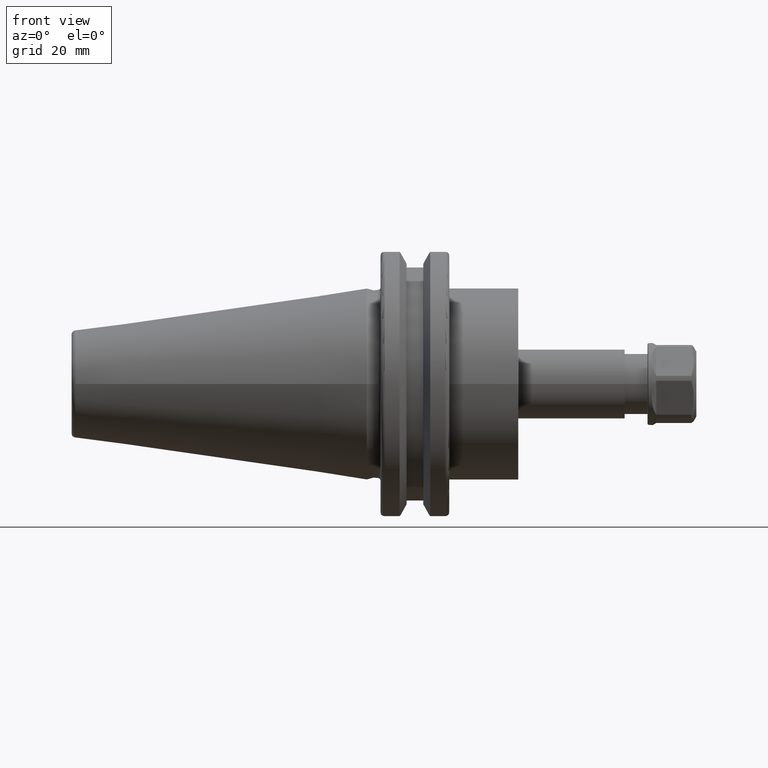
[diagram: clean part render]
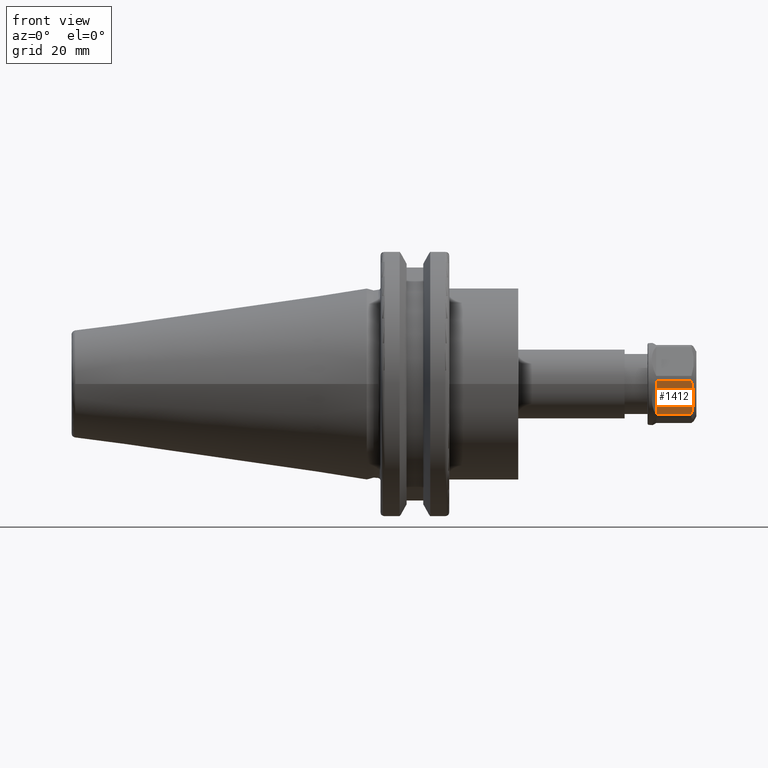
[diagram: same view with one face highlighted and labeled with its STEP entity id]
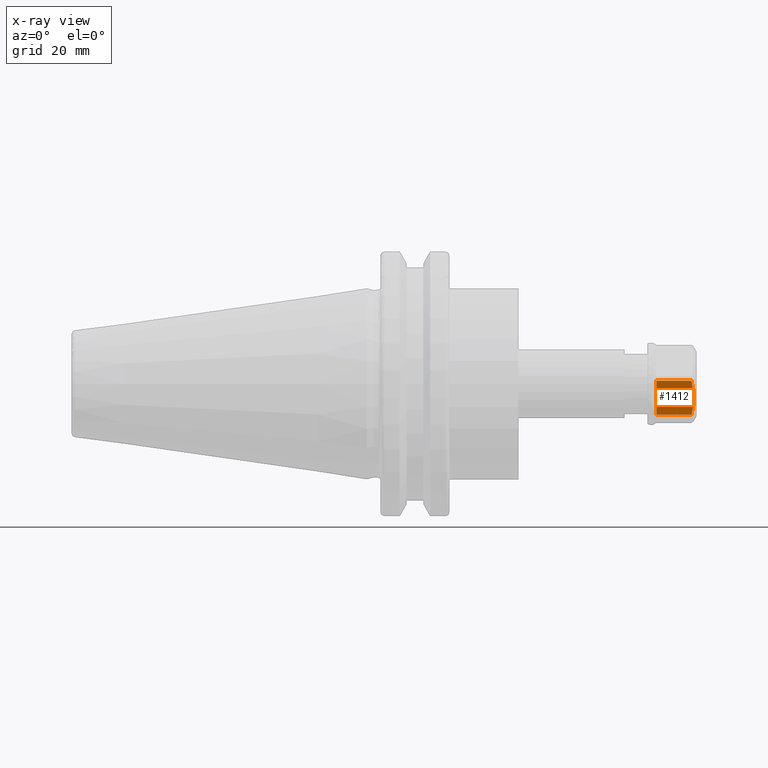
[diagram: x-ray of the same camera — body ghosted, the highlighted face saturated]
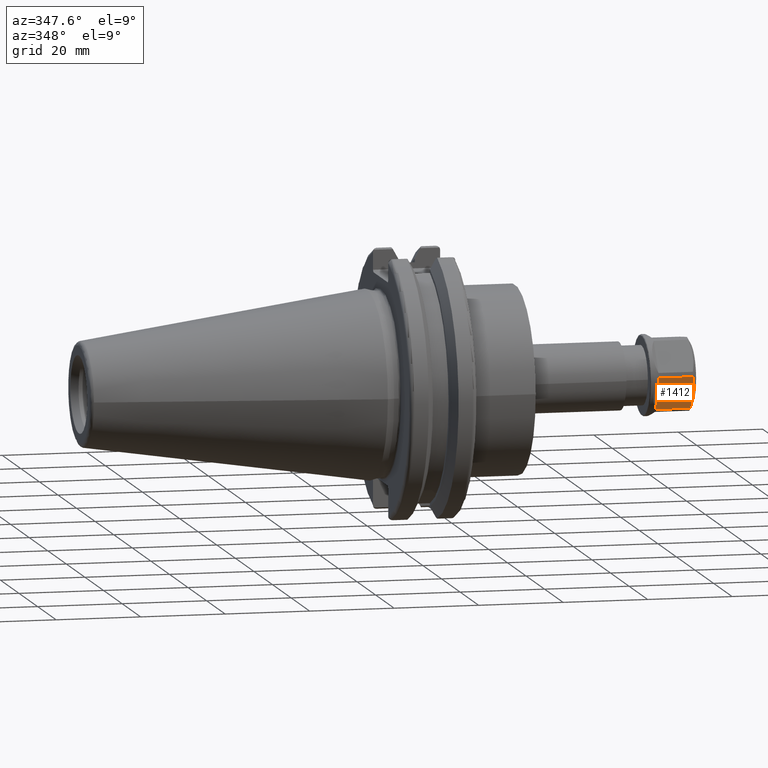
[diagram: same view with one face highlighted and labeled with its STEP entity id]
A machine part, front view. The second image highlights one B-rep face of the part: STEP entity #1412.
The next image is the same camera in x-ray: the body ghosted, the highlighted face saturated — about 0% of this face is hidden behind the body in this view.
A second angle (auxiliary view) of the same face is appended — the face is thin or edge-on in the first view.
In plain terms, the highlighted planar face has unit normal (0, 0.9271, 0.3749).
Its self-contained STEP definition (entity closure, byte-faithful):
#52=(
BOUNDED_CURVE()
B_SPLINE_CURVE(2,(#2520,#2521,#2522),.UNSPECIFIED.,.F.,.F.)
B_SPLINE_CURVE_WITH_KNOTS((3,3),(1.71636261954135,3.43883579587366),
 .UNSPECIFIED.)
CURVE()
GEOMETRIC_REPRESENTATION_ITEM()
RATIONAL_B_SPLINE_CURVE((1.88000685099785,2.10118412758618,1.88000685099786))
REPRESENTATION_ITEM('')
);
#135=PLANE('',#1631);
#227=FACE_OUTER_BOUND('',#320,.T.);
#320=EDGE_LOOP('',(#1309,#1310,#1311,#1312));
#399=LINE('',#2557,#492);
#400=LINE('',#2560,#493);
#414=LINE('',#2603,#507);
#492=VECTOR('',#1982,8.145299461621);
#493=VECTOR('',#1985,8.145299461621);
#507=VECTOR('',#2035,8.48528137423872);
#682=VERTEX_POINT('',#2517);
#683=VERTEX_POINT('',#2519);
#693=VERTEX_POINT('',#2556);
#694=VERTEX_POINT('',#2558);
#870=EDGE_CURVE('',#683,#682,#52,.T.);
#884=EDGE_CURVE('',#693,#683,#399,.T.);
#886=EDGE_CURVE('',#694,#682,#400,.T.);
#908=EDGE_CURVE('',#693,#694,#414,.T.);
#1309=ORIENTED_EDGE('',*,*,#908,.F.);
#1310=ORIENTED_EDGE('',*,*,#884,.T.);
#1311=ORIENTED_EDGE('',*,*,#870,.T.);
#1312=ORIENTED_EDGE('',*,*,#886,.F.);
#1412=ADVANCED_FACE('',(#227),#135,.F.);
#1631=AXIS2_PLACEMENT_3D('',#2602,#2033,#2034);
#1982=DIRECTION('',(1.,0.,0.));
#1985=DIRECTION('',(1.,0.,0.));
#2033=DIRECTION('center_axis',(0.,0.866025403784429,0.500000000000017));
#2034=DIRECTION('ref_axis',(0.,-0.500000000000017,0.866025403784429));
#2035=DIRECTION('',(0.,-0.500000000000017,0.866025403784429));
#2517=CARTESIAN_POINT('',(4.495299461621,-9.482536275727,-0.5757653858252));
#2519=CARTESIAN_POINT('',(4.495299461621,-5.239895588608,-7.924234614175));
#2520=CARTESIAN_POINT('Ctrl Pts',(4.49529946162074,-5.23989558860513,-7.9242346141762));
#2521=CARTESIAN_POINT('Ctrl Pts',(5.58922628745507,-7.36121593216611,-4.24999999999928));
#2522=CARTESIAN_POINT('Ctrl Pts',(4.49529946162076,-9.48253627572708,-0.575765385822384));
#2556=CARTESIAN_POINT('',(-3.65,-5.239895588608,-7.924234614175));
#2557=CARTESIAN_POINT('',(-3.65,-5.239895588608,-7.924234614175));
#2558=CARTESIAN_POINT('',(-3.65,-9.482536275727,-0.5757653858252));
#2560=CARTESIAN_POINT('',(-3.65,-9.482536275727,-0.5757653858252));
#2602=CARTESIAN_POINT('Origin',(5.65,-2.361215932168,-12.91025403784));
#2603=CARTESIAN_POINT('',(-3.65,-5.239895588608,-7.924234614175));